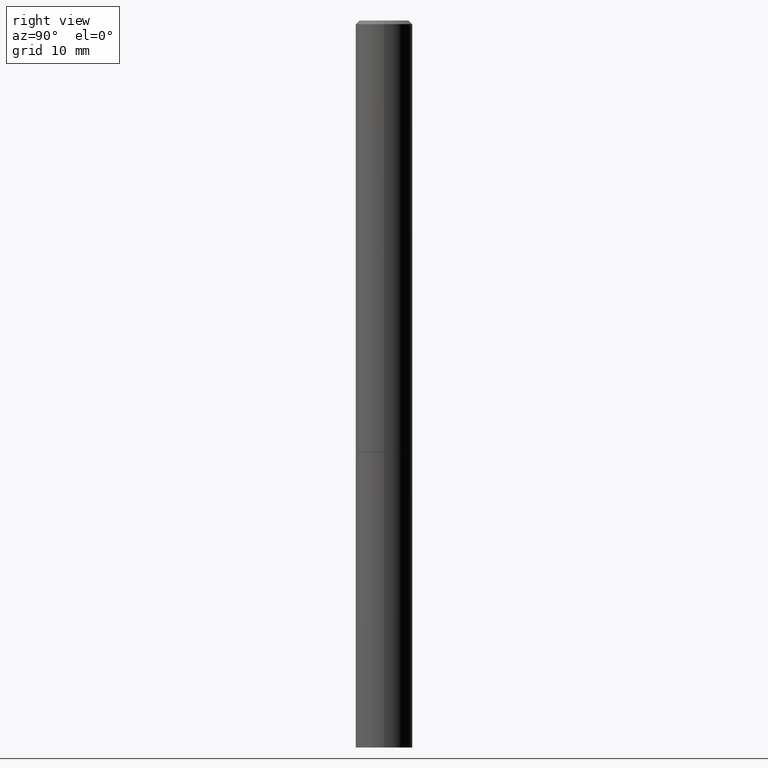
[diagram: clean part render]
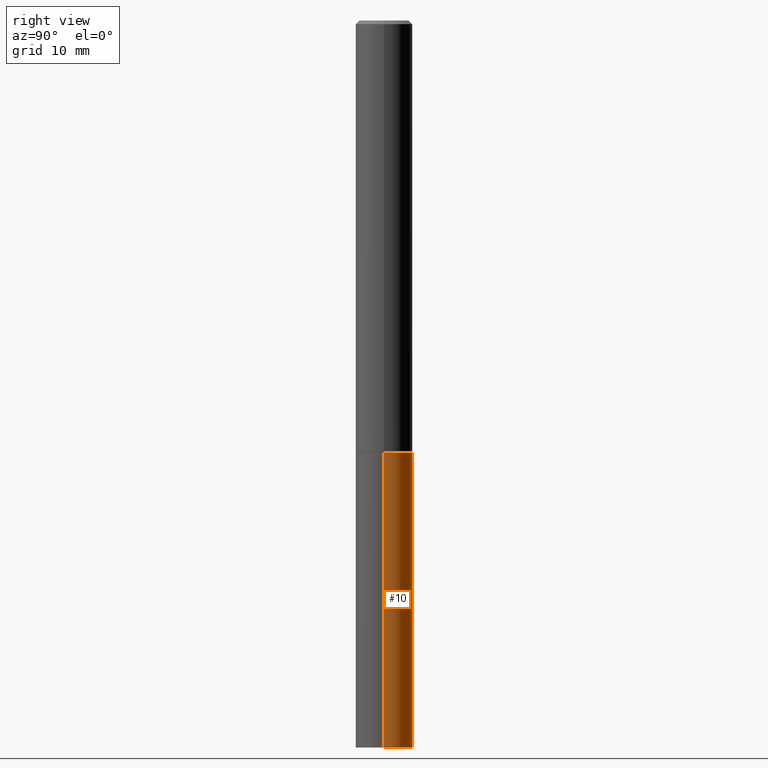
[diagram: same view with one face highlighted and labeled with its STEP entity id]
A machine part, right view. The second image highlights one B-rep face of the part: STEP entity #10.
In plain terms, the highlighted cylindrical surface (edge-blend (fillet) strip) has radius 3.9688 mm, axis along (-0, 0, 1).
Its self-contained STEP definition (entity closure, byte-faithful):
#3 = DIRECTION ( 'NONE',  ( -2.445468806185136597E-29, 3.491481338843145583E-15, 1.000000000000000000 ) ) ;
#10 = ADVANCED_FACE ( 'NONE', ( #84 ), #284, .T. ) ;
#11 = CARTESIAN_POINT ( 'NONE',  ( 9.781875224740546387E-29, -1.396592535537258233E-14, -4.000000000000000000 ) ) ;
#12 = VECTOR ( 'NONE', #268, 39.37007874015748143 ) ;
#39 = VERTEX_POINT ( 'NONE', #362 ) ;
#51 = EDGE_CURVE ( 'NONE', #54, #312, #293, .T. ) ;
#53 = AXIS2_PLACEMENT_3D ( 'NONE', #134, #3, #86 ) ;
#54 = VERTEX_POINT ( 'NONE', #209 ) ;
#55 = AXIS2_PLACEMENT_3D ( 'NONE', #122, #320, #353 ) ;
#60 = ORIENTED_EDGE ( 'NONE', *, *, #142, .F. ) ;
#69 = AXIS2_PLACEMENT_3D ( 'NONE', #11, #238, #210 ) ;
#78 = DIRECTION ( 'NONE',  ( -2.445468806185136877E-29, 3.491481338843145188E-15, 1.000000000000000000 ) ) ;
#82 = VECTOR ( 'NONE', #78, 39.37007874015748143 ) ;
#84 = FACE_OUTER_BOUND ( 'NONE', #117, .T. ) ;
#86 = DIRECTION ( 'NONE',  ( 1.000000000000000000, -6.982962677686266711E-15, 4.876176775795936353E-29 ) ) ;
#93 = CARTESIAN_POINT ( 'NONE',  ( 0.1562500000000000000, -1.091087918388479174E-15, 7.619026212181150377E-30 ) ) ;
#117 = EDGE_LOOP ( 'NONE', ( #263, #341, #60, #282 ) ) ;
#118 = EDGE_CURVE ( 'NONE', #54, #308, #313, .T. ) ;
#122 = CARTESIAN_POINT ( 'NONE',  ( 5.807988414689699417E-29, -8.292268179752470118E-15, -2.375000000000000000 ) ) ;
#134 = CARTESIAN_POINT ( 'NONE',  ( 0.000000000000000000, 0.000000000000000000, 0.000000000000000000 ) ) ;
#142 = EDGE_CURVE ( 'NONE', #312, #39, #151, .T. ) ;
#151 = CIRCLE ( 'NONE', #55, 0.1562500000000000000 ) ;
#191 = LINE ( 'NONE', #303, #82 ) ;
#194 = CARTESIAN_POINT ( 'NONE',  ( -0.1562500000000000000, -1.001887374293736968E-14, -4.000000000000000000 ) ) ;
#209 = CARTESIAN_POINT ( 'NONE',  ( 0.1562500000000000000, -1.505701327376106229E-14, -4.000000000000000000 ) ) ;
#210 = DIRECTION ( 'NONE',  ( 1.000000000000000000, -6.982962677686262766E-15, 0.000000000000000000 ) ) ;
#238 = DIRECTION ( 'NONE',  ( -2.445468806185136597E-29, 3.491481338843145583E-15, 1.000000000000000000 ) ) ;
#261 = CARTESIAN_POINT ( 'NONE',  ( 0.1562500000000000000, -9.383356098140948502E-15, -2.375000000000000000 ) ) ;
#263 = ORIENTED_EDGE ( 'NONE', *, *, #118, .T. ) ;
#268 = DIRECTION ( 'NONE',  ( -2.445468806185136877E-29, 3.491481338843145188E-15, 1.000000000000000000 ) ) ;
#282 = ORIENTED_EDGE ( 'NONE', *, *, #51, .F. ) ;
#284 = CYLINDRICAL_SURFACE ( 'NONE', #53, 0.1562500000000000000 ) ;
#293 = LINE ( 'NONE', #93, #12 ) ;
#297 = EDGE_CURVE ( 'NONE', #308, #39, #191, .T. ) ;
#303 = CARTESIAN_POINT ( 'NONE',  ( -0.1562500000000000000, 1.110223024625156540E-15, -7.685836078523291160E-30 ) ) ;
#308 = VERTEX_POINT ( 'NONE', #194 ) ;
#312 = VERTEX_POINT ( 'NONE', #261 ) ;
#313 = CIRCLE ( 'NONE', #69, 0.1562500000000000000 ) ;
#320 = DIRECTION ( 'NONE',  ( -2.445468806185136597E-29, 3.491481338843145583E-15, 1.000000000000000000 ) ) ;
#341 = ORIENTED_EDGE ( 'NONE', *, *, #297, .T. ) ;
#353 = DIRECTION ( 'NONE',  ( 1.000000000000000000, -6.982962677686262766E-15, 0.000000000000000000 ) ) ;
#362 = CARTESIAN_POINT ( 'NONE',  ( -0.1562500000000000000, -1.001887374293736968E-14, -2.375000000000000000 ) ) ;